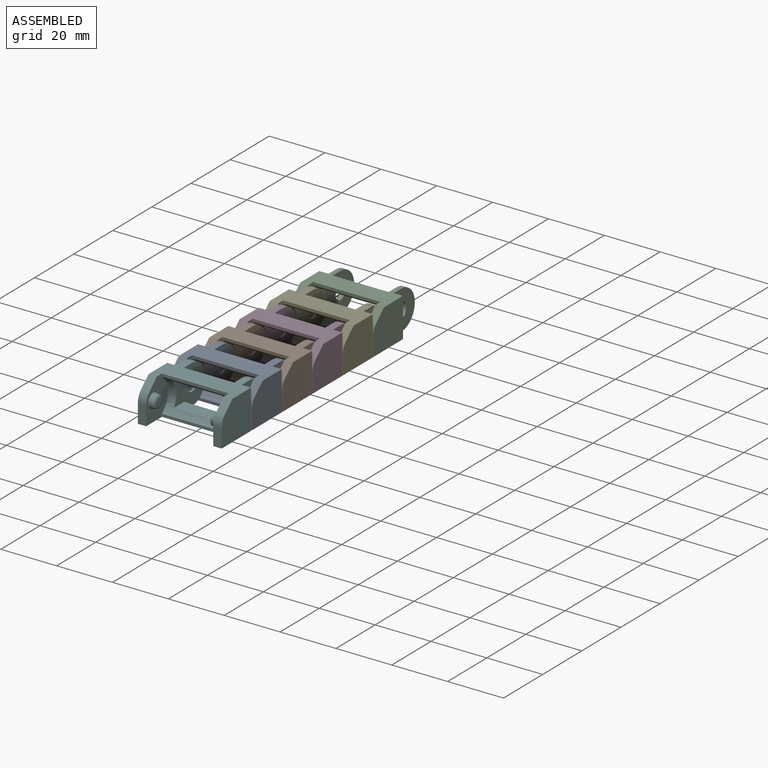
[diagram: assembled view]
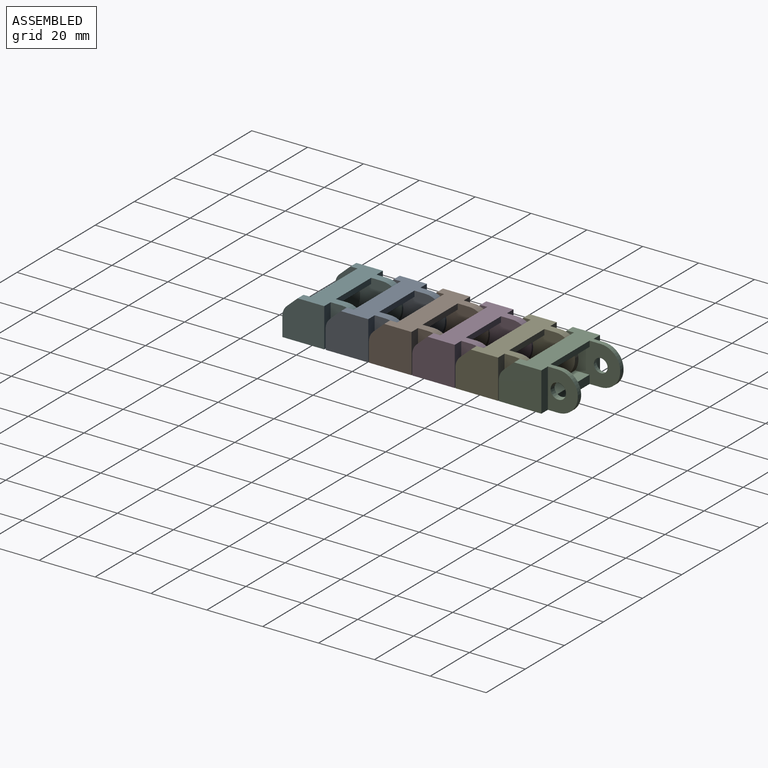
[diagram: assembled view, second angle]
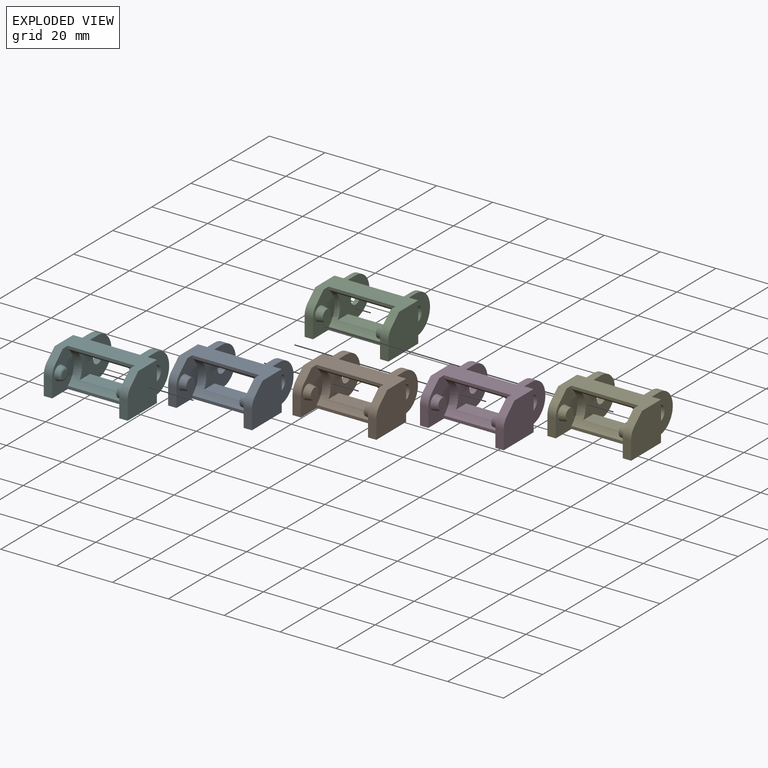
[diagram: exploded view]
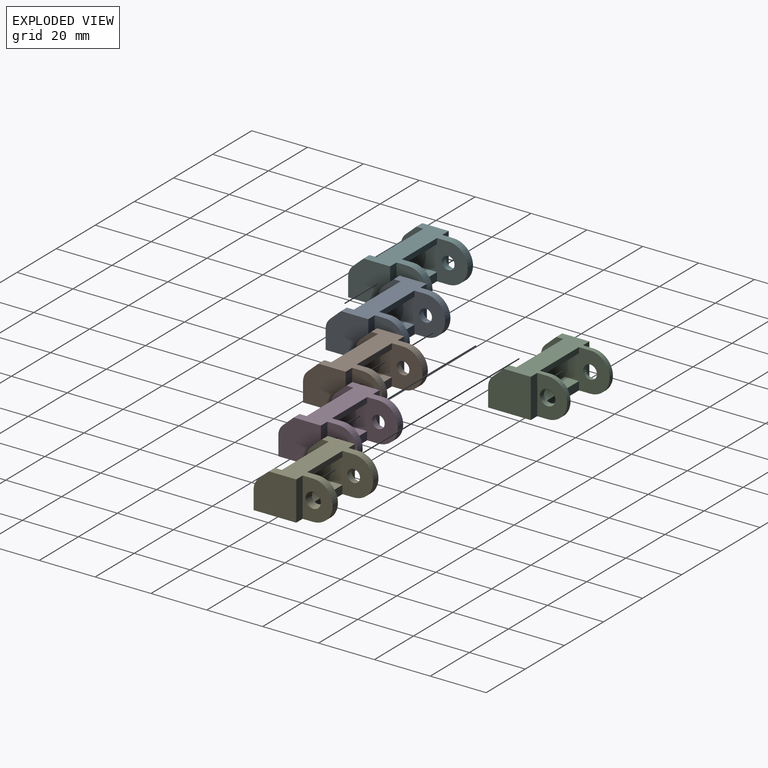
[diagram: exploded view, second angle]
ASSEMBLY  parts=6 mates=2
PART A: 33 faces, bbox 30x26x14 mm
  f0: plane 16.91x14mm, normal (-1,0,0), area 157.2mm2, adj f2,f4,f8,f11,f14,f17,f18,f19
  f1: plane 6.79x3mm, normal (0,-1,0), area 20.4mm2, adj f2,f6,f7,f13
  f2: plane 30x19mm, normal (0,0,-1), area 281.2mm2, adj f0,f1,f3,f7,f8,f9,f10,f13
  f3: plane 14x3.3mm, normal (0,1,0), area 46.2mm2, adj f2,f4,f7,f9
  f4: plane 30x13.5mm, normal (0,0,1), area 248.2mm2, adj f0,f3,f5,f7,f8,f9,f12,f13
  f5: plane 3.86x3.51mm, normal (0,-0.67,0.74), area 15.7mm2, adj f4,f6,f7,f13
  f6: cylinder r=5mm len=3.7mm, axis (-1,0,0), area 12.5mm2, adj f1,f5,f7,f13
  f7: plane 15.25x14mm, normal (1,0,0), area 199.1mm2, adj f1,f2,f3,f4,f5,f6
  f8: cylinder r=7mm len=14mm, axis (-1,0,0), area 59.4mm2, adj f0,f2,f4,f9
  f9: plane 14x10.75mm, normal (1,0,0), area 105.7mm2, adj f2,f3,f4,f8,f14
  f10: plane 24x1mm, normal (0,-1,0), area 24mm2, adj f2,f11,f13,f29
  f11: cylinder r=7.5mm len=24mm, axis (-1,0,0), area 159.4mm2, adj f0,f10,f12,f13,f17,f20,f21,f29
  f12: plane 24x1mm, normal (0,-1,0), area 24mm2, adj f4,f11,f13,f29
  f13: plane 14x11mm, normal (-1,0,0), area 103.1mm2, adj f1,f2,f4,f5,f6,f10,f11,f12
  f14: cone r=2.75mm half-angle=10deg, axis (1,0,0), area 43.3mm2, adj f0,f9
  f15: cone r=2.5mm half-angle=10deg, axis (1,0,0), area 36.4mm2, adj f13,f16
  f16: plane 4.12x4.12mm, normal (-1,0,0), area 13.3mm2, adj f15
  f17: plane 18x5.16mm, normal (0,0,1), area 92.8mm2, adj f0,f11,f18,f21
  f18: plane 18x3mm, normal (0,1,0), area 54mm2, adj f0,f2,f17,f21
  f19: plane 18x2mm, normal (0,1,0), area 36mm2, adj f0,f4,f20,f21
  f20: plane 18x5.91mm, normal (0,0,-1), area 106.4mm2, adj f0,f11,f19,f21
  f21: plane 16.91x14mm, normal (1,0,0), area 157.2mm2, adj f2,f4,f11,f17,f18,f19,f20,f27
  f22: plane 6.79x3mm, normal (0,-1,0), area 20.4mm2, adj f2,f25,f26,f29
  f23: plane 14x3.3mm, normal (0,1,0), area 46.2mm2, adj f2,f4,f26,f28
  f24: plane 3.86x3.51mm, normal (0,-0.67,0.74), area 15.7mm2, adj f4,f25,f26,f29
  f25: cylinder r=5mm len=3.7mm, axis (1,0,0), area 12.5mm2, adj f22,f24,f26,f29
  f26: plane 15.25x14mm, normal (-1,0,0), area 199.1mm2, adj f2,f4,f22,f23,f24,f25
  f27: cylinder r=7mm len=14mm, axis (1,0,0), area 59.4mm2, adj f2,f4,f21,f28
  f28: plane 14x10.75mm, normal (-1,0,0), area 105.7mm2, adj f2,f4,f23,f27,f30
  f29: plane 14x11mm, normal (1,0,0), area 103.1mm2, adj f2,f4,f10,f11,f12,f22,f24,f25
  f30: cone r=2.75mm half-angle=10deg, axis (-1,0,0), area 43.3mm2, adj f21,f28
  f31: cone r=2.5mm half-angle=10deg, axis (-1,0,0), area 36.4mm2, adj f29,f32
  f32: plane 4.12x4.12mm, normal (1,0,0), area 13.3mm2, adj f31
PART B: same geometry as A
PART C: 33 faces, bbox 30x26x14 mm
  f0: plane 16.91x14mm, normal (-1,0,0), area 154.6mm2, adj f2,f4,f8,f11,f14,f17,f18,f19
  f1: plane 6.79x3mm, normal (0,-1,0), area 20.4mm2, adj f2,f6,f7,f13
  f2: plane 30x19mm, normal (0,0,-1), area 273.2mm2, adj f0,f1,f3,f7,f8,f9,f10,f13
  f3: plane 14x3.3mm, normal (0,1,0), area 46.2mm2, adj f2,f4,f7,f9
  f4: plane 30x13.5mm, normal (0,0,1), area 240.3mm2, adj f0,f3,f5,f7,f8,f9,f12,f13
  f5: plane 3.86x3.51mm, normal (0,-0.67,0.74), area 15.7mm2, adj f4,f6,f7,f13
  f6: cylinder r=5mm len=3.7mm, axis (-1,0,0), area 12.5mm2, adj f1,f5,f7,f13
  f7: plane 15.25x14mm, normal (1,0,0), area 199.1mm2, adj f1,f2,f3,f4,f5,f6
  f8: cylinder r=7mm len=14mm, axis (-1,0,0), area 37.4mm2, adj f0,f2,f4,f9
  f9: plane 14x10.75mm, normal (1,0,0), area 105.7mm2, adj f2,f3,f4,f8,f14
  f10: plane 24x1mm, normal (0,-1,0), area 24mm2, adj f2,f11,f13,f29
  f11: cylinder r=7.5mm len=24mm, axis (-1,0,0), area 140mm2, adj f0,f10,f12,f13,f17,f20,f21,f29
  f12: plane 24x1mm, normal (0,-1,0), area 24mm2, adj f4,f11,f13,f29
  f13: plane 14x11mm, normal (-1,0,0), area 103.1mm2, adj f1,f2,f4,f5,f6,f10,f11,f12
  f14: cone r=2.75mm half-angle=10deg, axis (1,0,0), area 28.2mm2, adj f0,f9
  f15: cone r=2.5mm half-angle=10deg, axis (1,0,0), area 36.4mm2, adj f13,f16
  f16: plane 4.12x4.12mm, normal (-1,0,0), area 13.3mm2, adj f15
  f17: plane 20x5.16mm, normal (0,0,1), area 103.1mm2, adj f0,f11,f18,f21
  f18: plane 20x3mm, normal (0,1,0), area 60mm2, adj f0,f2,f17,f21
  f19: plane 20x2mm, normal (0,1,0), area 40mm2, adj f0,f4,f20,f21
  f20: plane 20x5.91mm, normal (0,0,-1), area 118.2mm2, adj f0,f11,f19,f21
  f21: plane 16.91x14mm, normal (1,0,0), area 154.6mm2, adj f2,f4,f11,f17,f18,f19,f20,f27
  f22: plane 6.79x3mm, normal (0,-1,0), area 20.4mm2, adj f2,f25,f26,f29
  f23: plane 14x3.3mm, normal (0,1,0), area 46.2mm2, adj f2,f4,f26,f28
  f24: plane 3.86x3.51mm, normal (0,-0.67,0.74), area 15.7mm2, adj f4,f25,f26,f29
  f25: cylinder r=5mm len=3.7mm, axis (1,0,0), area 12.5mm2, adj f22,f24,f26,f29
  f26: plane 15.25x14mm, normal (-1,0,0), area 199.1mm2, adj f2,f4,f22,f23,f24,f25
  f27: cylinder r=7mm len=14mm, axis (1,0,0), area 37.4mm2, adj f2,f4,f21,f28
  f28: plane 14x10.75mm, normal (-1,0,0), area 105.7mm2, adj f2,f4,f23,f27,f30
  f29: plane 14x11mm, normal (1,0,0), area 103.1mm2, adj f2,f4,f10,f11,f12,f22,f24,f25
  f30: cone r=2.75mm half-angle=10deg, axis (-1,0,0), area 28.2mm2, adj f21,f28
  f31: cone r=2.5mm half-angle=10deg, axis (-1,0,0), area 36.4mm2, adj f29,f32
  f32: plane 4.12x4.12mm, normal (1,0,0), area 13.3mm2, adj f31
PART D: same geometry as A
PART E: same geometry as A
PART F: 34 faces, bbox 30x26x14 mm
  f0: plane 16.91x14mm, normal (-1,0,0), area 157.2mm2, adj f2,f4,f8,f11,f14,f17,f18,f19
  f1: plane 6.79x3mm, normal (0,-1,0), area 20.4mm2, adj f2,f6,f7,f13
  f2: plane 30x19mm, normal (0,0,-1), area 279.6mm2, adj f0,f1,f3,f7,f8,f9,f10,f13
  f3: plane 14x3.3mm, normal (0,1,0), area 46.2mm2, adj f2,f4,f7,f9
  f4: plane 30x13.5mm, normal (0,0,1), area 246.6mm2, adj f0,f3,f5,f7,f8,f9,f12,f13
  f5: plane 3.86x3.51mm, normal (0,-0.67,0.74), area 15.7mm2, adj f4,f6,f7,f13
  f6: cylinder r=5mm len=3.7mm, axis (-1,0,0), area 12.5mm2, adj f1,f5,f7,f13
  f7: plane 15x14mm, normal (1,0,0), area 195.6mm2, adj f1,f2,f3,f4,f5,f6
  f8: cylinder r=7mm len=14mm, axis (-1,0,0), area 59.4mm2, adj f0,f2,f4,f9
  f9: plane 14x11mm, normal (1,0,0), area 109.2mm2, adj f2,f3,f4,f8,f14
  f10: plane 24x1mm, normal (0,-1,0), area 24mm2, adj f2,f11,f13,f29
  f11: cylinder r=7.5mm len=24mm, axis (-1,0,0), area 159.4mm2, adj f0,f10,f12,f13,f17,f20,f21,f29
  f12: plane 24x1mm, normal (0,-1,0), area 24mm2, adj f4,f11,f13,f29
  f13: plane 14x11mm, normal (-1,0,0), area 103.1mm2, adj f1,f2,f4,f5,f6,f10,f11,f12
  f14: cone r=2.75mm half-angle=10deg, axis (1,0,0), area 43.3mm2, adj f0,f9
  f15: cone r=2.5mm half-angle=10deg, axis (1,0,0), area 29.7mm2, adj f13,f16
  f16: plane 4.29x4.29mm, normal (-1,0,0), area 14.5mm2, adj f15
  f17: plane 18x5.16mm, normal (0,0,1), area 92.8mm2, adj f0,f11,f18,f21
  f18: plane 18x3mm, normal (0,1,0), area 54mm2, adj f0,f2,f17,f21
  f19: plane 18x2mm, normal (0,1,0), area 36mm2, adj f0,f4,f20,f21
  f20: plane 18x5.91mm, normal (0,0,-1), area 106.4mm2, adj f0,f11,f19,f21
  f21: plane 16.91x14mm, normal (1,0,0), area 157.2mm2, adj f2,f4,f11,f17,f18,f19,f20,f27
  f22: plane 6.79x3mm, normal (0,-1,0), area 20.4mm2, adj f2,f25,f26,f29
  f23: plane 14x3.3mm, normal (0,1,0), area 46.2mm2, adj f2,f4,f26,f28
  f24: plane 3.86x3.51mm, normal (0,-0.67,0.74), area 15.7mm2, adj f4,f25,f26,f29
  f25: cylinder r=5mm len=3.7mm, axis (1,0,0), area 12.5mm2, adj f22,f24,f26,f29
  f26: plane 15x14mm, normal (-1,0,0), area 195.6mm2, adj f2,f4,f22,f23,f24,f25
  f27: cylinder r=7mm len=14mm, axis (1,0,0), area 59.4mm2, adj f2,f4,f21,f28
  f28: plane 14x11mm, normal (-1,0,0), area 109.2mm2, adj f2,f4,f23,f27,f30
  f29: plane 14x11mm, normal (1,0,0), area 103.1mm2, adj f2,f4,f10,f11,f12,f22,f24,f25
  f30: cone r=2.75mm half-angle=10deg, axis (-1,0,0), area 43.3mm2, adj f21,f28
  f31: cone r=2.5mm half-angle=10deg, axis (-1,0,0), area 17.9mm2, adj f29,f33
  f32: plane 2.62x2.62mm, normal (1,0,0), area 5.4mm2, adj f33
  f33: torus R=1.31mm, axis (1,0,0), area 16.7mm2, adj f31,f32
PLACE A at identity fixed
PLACE B t=(0,15.5,0)mm
PLACE C t=(0,62,0)mm
PLACE D t=(0,31,0)mm
PLACE E t=(0,46.5,0)mm
PLACE F t=(0,-15.5,0)mm
MATE fastened C.f15 <-> E.f8  axis (-1,0,0) through (-9.5,52.5,0)mm
MATE revolute A.f15 <-> F.f8  axis (-1,0,0) through (-9.5,-9.5,0)mm
